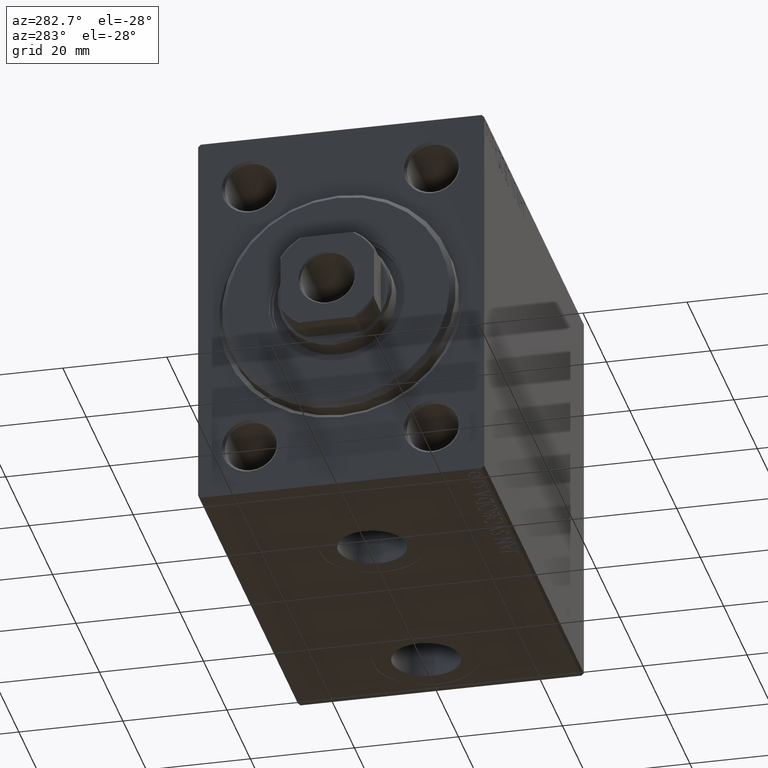
[diagram: clean part render]
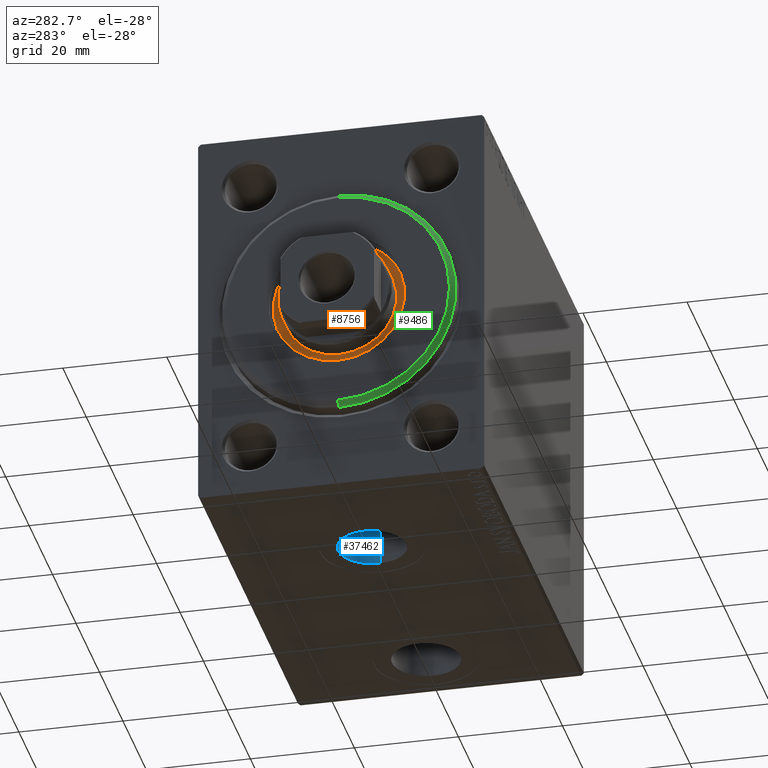
[diagram: same view with three faces highlighted in distinct colors, each labeled with its STEP entity id]
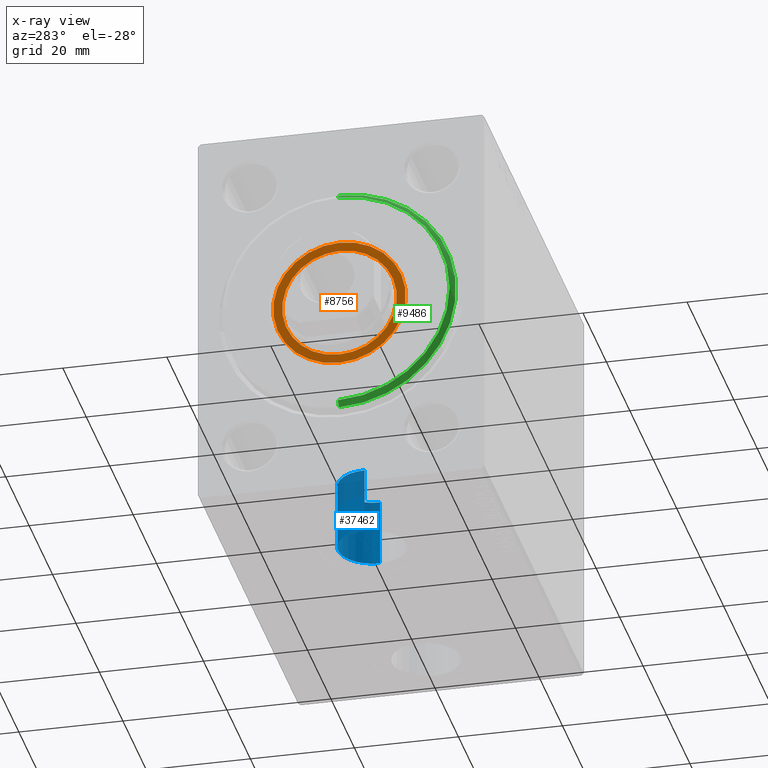
[diagram: x-ray of the same camera — body ghosted, the three highlighted faces saturated]
A machine part, auxiliary view with three faces highlighted in distinct colors.
The next image is the same camera in x-ray (body ghosted, the three faces saturated) — at least one of them is partly hidden behind the body in this view.
Their STEP definitions:

[orange] entity #8756 — the highlighted planar face has unit normal (-1, 0, 0).
#750 = FACE_BOUND ( 'NONE', #41080, .T. ) ;
#2014 = CARTESIAN_POINT ( 'NONE',  ( 1.499999999999999556, 0.000000000000000000, 0.000000000000000000 ) ) ;
#2686 = ORIENTED_EDGE ( 'NONE', *, *, #26908, .T. ) ;
#3203 = EDGE_CURVE ( 'NONE', #19255, #10459, #16832, .T. ) ;
#4662 = CARTESIAN_POINT ( 'NONE',  ( 1.500000000000000000, 0.000000000000000000, 12.75000000000000000 ) ) ;
#4664 = CARTESIAN_POINT ( 'NONE',  ( 1.500000000000000000, 0.000000000000000000, 0.000000000000000000 ) ) ;
#4954 = CARTESIAN_POINT ( 'NONE',  ( 1.499999999999999556, 0.000000000000000000, -11.00000000000000000 ) ) ;
#5972 = DIRECTION ( 'NONE',  ( 1.000000000000000000, 0.000000000000000000, 0.000000000000000000 ) ) ;
#8274 = DIRECTION ( 'NONE',  ( 1.000000000000000000, 0.000000000000000000, 0.000000000000000000 ) ) ;
#8417 = CIRCLE ( 'NONE', #20181, 12.75000000000000000 ) ;
#8756 = ADVANCED_FACE ( 'NONE', ( #750, #28860 ), #15027, .T. ) ;
#10459 = VERTEX_POINT ( 'NONE', #22974 ) ;
#12208 = DIRECTION ( 'NONE',  ( 0.000000000000000000, 0.000000000000000000, -1.000000000000000000 ) ) ;
#12518 = VERTEX_POINT ( 'NONE', #4954 ) ;
#12661 = CARTESIAN_POINT ( 'NONE',  ( 1.500000000000000000, 0.000000000000000000, 0.000000000000000000 ) ) ;
#13043 = CIRCLE ( 'NONE', #15292, 11.00000000000000000 ) ;
#13144 = AXIS2_PLACEMENT_3D ( 'NONE', #12661, #5972, #12208 ) ;
#14972 = ORIENTED_EDGE ( 'NONE', *, *, #16357, .F. ) ;
#15027 = PLANE ( 'NONE',  #27196 ) ;
#15246 = DIRECTION ( 'NONE',  ( 1.000000000000000000, 0.000000000000000000, 0.000000000000000000 ) ) ;
#15292 = AXIS2_PLACEMENT_3D ( 'NONE', #25029, #39076, #28930 ) ;
#15847 = DIRECTION ( 'NONE',  ( 0.000000000000000000, 0.000000000000000000, -1.000000000000000000 ) ) ;
#16357 = EDGE_CURVE ( 'NONE', #12518, #39374, #35501, .T. ) ;
#16832 = CIRCLE ( 'NONE', #13144, 12.75000000000000000 ) ;
#17268 = CARTESIAN_POINT ( 'NONE',  ( 1.499999999999999556, 1.347111479062088405E-15, 11.00000000000000000 ) ) ;
#18473 = DIRECTION ( 'NONE',  ( 0.000000000000000000, 0.000000000000000000, -1.000000000000000000 ) ) ;
#18570 = AXIS2_PLACEMENT_3D ( 'NONE', #2014, #8274, #15847 ) ;
#19244 = DIRECTION ( 'NONE',  ( 1.000000000000000000, 0.000000000000000000, 0.000000000000000000 ) ) ;
#19255 = VERTEX_POINT ( 'NONE', #4662 ) ;
#20181 = AXIS2_PLACEMENT_3D ( 'NONE', #33757, #19244, #44366 ) ;
#22974 = CARTESIAN_POINT ( 'NONE',  ( 1.500000000000000000, 1.561424668912874914E-15, -12.75000000000000000 ) ) ;
#25029 = CARTESIAN_POINT ( 'NONE',  ( 1.499999999999999556, 0.000000000000000000, 0.000000000000000000 ) ) ;
#26908 = EDGE_CURVE ( 'NONE', #10459, #19255, #8417, .T. ) ;
#27196 = AXIS2_PLACEMENT_3D ( 'NONE', #4664, #15246, #18473 ) ;
#27506 = ORIENTED_EDGE ( 'NONE', *, *, #32598, .F. ) ;
#28860 = FACE_OUTER_BOUND ( 'NONE', #35562, .T. ) ;
#28930 = DIRECTION ( 'NONE',  ( 0.000000000000000000, 0.000000000000000000, -1.000000000000000000 ) ) ;
#32598 = EDGE_CURVE ( 'NONE', #39374, #12518, #13043, .T. ) ;
#33757 = CARTESIAN_POINT ( 'NONE',  ( 1.500000000000000000, 0.000000000000000000, 0.000000000000000000 ) ) ;
#35501 = CIRCLE ( 'NONE', #18570, 11.00000000000000000 ) ;
#35562 = EDGE_LOOP ( 'NONE', ( #45522, #2686 ) ) ;
#39076 = DIRECTION ( 'NONE',  ( 1.000000000000000000, 0.000000000000000000, 0.000000000000000000 ) ) ;
#39374 = VERTEX_POINT ( 'NONE', #17268 ) ;
#41080 = EDGE_LOOP ( 'NONE', ( #14972, #27506 ) ) ;
#44366 = DIRECTION ( 'NONE',  ( 0.000000000000000000, 0.000000000000000000, -1.000000000000000000 ) ) ;
#45522 = ORIENTED_EDGE ( 'NONE', *, *, #3203, .T. ) ;

[blue] entity #37462 — the highlighted cylindrical surface (edge-blend (fillet) strip) has radius 6.58 mm, axis along (-0, -0, -1).
#2095 = CIRCLE ( 'NONE', #33742, 6.580000000000002736 ) ;
#2715 = CARTESIAN_POINT ( 'NONE',  ( 33.07999999999999829, -2.655956697058369311E-15, -24.49999999999999289 ) ) ;
#7217 = EDGE_CURVE ( 'NONE', #24890, #11296, #2095, .T. ) ;
#7603 = CARTESIAN_POINT ( 'NONE',  ( 26.50000000000000000, -3.461774290897328353E-15, -37.39999999999999858 ) ) ;
#10154 = ORIENTED_EDGE ( 'NONE', *, *, #27327, .T. ) ;
#10183 = VECTOR ( 'NONE', #44475, 1000.000000000000000 ) ;
#10954 = VECTOR ( 'NONE', #13127, 1000.000000000000000 ) ;
#11296 = VERTEX_POINT ( 'NONE', #2715 ) ;
#11562 = DIRECTION ( 'NONE',  ( -1.000000000000000000, 0.000000000000000000, 0.000000000000000000 ) ) ;
#12983 = DIRECTION ( 'NONE',  ( -1.000000000000000000, 0.000000000000000000, 0.000000000000000000 ) ) ;
#13127 = DIRECTION ( 'NONE',  ( -0.000000000000000000, -0.000000000000000000, -1.000000000000000000 ) ) ;
#14807 = CARTESIAN_POINT ( 'NONE',  ( 19.91999999999999815, -3.461774290897328353E-15, -37.39999999999999858 ) ) ;
#15496 = CARTESIAN_POINT ( 'NONE',  ( 33.07999999999999829, -2.655956697058369311E-15, -37.39999999999999858 ) ) ;
#19481 = AXIS2_PLACEMENT_3D ( 'NONE', #7603, #25352, #35711 ) ;
#20588 = CYLINDRICAL_SURFACE ( 'NONE', #29247, 6.580000000000002736 ) ;
#23276 = CARTESIAN_POINT ( 'NONE',  ( 33.07999999999999829, -2.655956697058369706E-15, -24.49999999999999289 ) ) ;
#23962 = LINE ( 'NONE', #23276, #10954 ) ;
#24890 = VERTEX_POINT ( 'NONE', #37442 ) ;
#25352 = DIRECTION ( 'NONE',  ( 0.000000000000000000, 0.000000000000000000, -1.000000000000000000 ) ) ;
#26847 = CIRCLE ( 'NONE', #19481, 6.580000000000002736 ) ;
#27327 = EDGE_CURVE ( 'NONE', #42926, #44128, #26847, .T. ) ;
#27513 = FACE_OUTER_BOUND ( 'NONE', #44645, .T. ) ;
#27971 = CARTESIAN_POINT ( 'NONE',  ( 26.50000000000000000, -3.461774290897328353E-15, -24.49999999999999289 ) ) ;
#29247 = AXIS2_PLACEMENT_3D ( 'NONE', #27971, #38093, #12983 ) ;
#30186 = LINE ( 'NONE', #40332, #10183 ) ;
#32252 = ORIENTED_EDGE ( 'NONE', *, *, #7217, .F. ) ;
#32994 = DIRECTION ( 'NONE',  ( 0.000000000000000000, 0.000000000000000000, -1.000000000000000000 ) ) ;
#33742 = AXIS2_PLACEMENT_3D ( 'NONE', #43137, #32994, #11562 ) ;
#35711 = DIRECTION ( 'NONE',  ( -1.000000000000000000, 0.000000000000000000, 0.000000000000000000 ) ) ;
#36788 = ORIENTED_EDGE ( 'NONE', *, *, #40935, .F. ) ;
#37442 = CARTESIAN_POINT ( 'NONE',  ( 19.91999999999999815, -3.461774290897328353E-15, -24.49999999999999289 ) ) ;
#37462 = ADVANCED_FACE ( 'NONE', ( #27513 ), #20588, .F. ) ;
#38093 = DIRECTION ( 'NONE',  ( -0.000000000000000000, -0.000000000000000000, -1.000000000000000000 ) ) ;
#39277 = EDGE_CURVE ( 'NONE', #24890, #42926, #30186, .T. ) ;
#40332 = CARTESIAN_POINT ( 'NONE',  ( 19.91999999999999815, -3.461774290897328353E-15, -24.49999999999999289 ) ) ;
#40935 = EDGE_CURVE ( 'NONE', #11296, #44128, #23962, .T. ) ;
#42926 = VERTEX_POINT ( 'NONE', #14807 ) ;
#43137 = CARTESIAN_POINT ( 'NONE',  ( 26.50000000000000000, -3.461774290897328353E-15, -24.49999999999999289 ) ) ;
#44128 = VERTEX_POINT ( 'NONE', #15496 ) ;
#44475 = DIRECTION ( 'NONE',  ( -0.000000000000000000, -0.000000000000000000, -1.000000000000000000 ) ) ;
#44645 = EDGE_LOOP ( 'NONE', ( #36788, #32252, #44947, #10154 ) ) ;
#44947 = ORIENTED_EDGE ( 'NONE', *, *, #39277, .T. ) ;

[green] entity #9486 — the highlighted conical surface has half-angle 45 deg.
#1395 = CARTESIAN_POINT ( 'NONE',  ( 3.000000000000000000, 2.694222958124177598E-15, -21.50000000000000355 ) ) ;
#1805 = VERTEX_POINT ( 'NONE', #1395 ) ;
#2614 = CARTESIAN_POINT ( 'NONE',  ( 3.000000000000000000, 0.000000000000000000, 21.50000000000000355 ) ) ;
#2756 = CIRCLE ( 'NONE', #43979, 21.50000000000000355 ) ;
#4336 = CARTESIAN_POINT ( 'NONE',  ( 3.000000000000000000, 0.000000000000000000, 0.000000000000000000 ) ) ;
#4903 = EDGE_LOOP ( 'NONE', ( #30896, #22058, #19042, #32935 ) ) ;
#5225 = VERTEX_POINT ( 'NONE', #37551 ) ;
#6910 = DIRECTION ( 'NONE',  ( 1.000000000000000000, -0.000000000000000000, 0.000000000000000000 ) ) ;
#7476 = AXIS2_PLACEMENT_3D ( 'NONE', #15613, #16057, #30113 ) ;
#8556 = EDGE_CURVE ( 'NONE', #1805, #36893, #12344, .T. ) ;
#9486 = ADVANCED_FACE ( 'NONE', ( #17928 ), #19106, .T. ) ;
#11052 = VECTOR ( 'NONE', #30491, 1000.000000000000000 ) ;
#12344 = LINE ( 'NONE', #41075, #22769 ) ;
#13487 = EDGE_CURVE ( 'NONE', #5225, #36893, #28826, .T. ) ;
#15613 = CARTESIAN_POINT ( 'NONE',  ( 1.999999999999999112, 0.000000000000000000, 0.000000000000000000 ) ) ;
#16057 = DIRECTION ( 'NONE',  ( -1.000000000000000000, 0.000000000000000000, 0.000000000000000000 ) ) ;
#16441 = LINE ( 'NONE', #2614, #11052 ) ;
#17928 = FACE_OUTER_BOUND ( 'NONE', #4903, .T. ) ;
#19042 = ORIENTED_EDGE ( 'NONE', *, *, #13487, .F. ) ;
#19106 = CONICAL_SURFACE ( 'NONE', #24280, 21.50000000000000355, 0.7853981633974466137 ) ;
#22058 = ORIENTED_EDGE ( 'NONE', *, *, #8556, .T. ) ;
#22735 = DIRECTION ( 'NONE',  ( -0.7071067811865487940, 8.659560562354919300E-17, -0.7071067811865463515 ) ) ;
#22769 = VECTOR ( 'NONE', #22735, 1000.000000000000000 ) ;
#24280 = AXIS2_PLACEMENT_3D ( 'NONE', #4336, #31986, #35894 ) ;
#26766 = CARTESIAN_POINT ( 'NONE',  ( 3.000000000000000000, 0.000000000000000000, 21.50000000000000355 ) ) ;
#27885 = CARTESIAN_POINT ( 'NONE',  ( 3.000000000000000000, 0.000000000000000000, 0.000000000000000000 ) ) ;
#28826 = CIRCLE ( 'NONE', #7476, 22.50000000000000355 ) ;
#28988 = VERTEX_POINT ( 'NONE', #26766 ) ;
#30113 = DIRECTION ( 'NONE',  ( 0.000000000000000000, 0.000000000000000000, -1.000000000000000000 ) ) ;
#30491 = DIRECTION ( 'NONE',  ( -0.7071067811865487940, 0.000000000000000000, 0.7071067811865463515 ) ) ;
#30896 = ORIENTED_EDGE ( 'NONE', *, *, #32892, .F. ) ;
#31986 = DIRECTION ( 'NONE',  ( -1.000000000000000000, 0.000000000000000000, 0.000000000000000000 ) ) ;
#32892 = EDGE_CURVE ( 'NONE', #1805, #28988, #2756, .T. ) ;
#32935 = ORIENTED_EDGE ( 'NONE', *, *, #43990, .F. ) ;
#35894 = DIRECTION ( 'NONE',  ( 0.000000000000000000, 0.000000000000000000, 1.000000000000000000 ) ) ;
#36893 = VERTEX_POINT ( 'NONE', #38782 ) ;
#37551 = CARTESIAN_POINT ( 'NONE',  ( 1.999999999999999112, 0.000000000000000000, 22.50000000000000355 ) ) ;
#38782 = CARTESIAN_POINT ( 'NONE',  ( 1.999999999999999112, 2.755455298081545172E-15, -22.50000000000000355 ) ) ;
#41075 = CARTESIAN_POINT ( 'NONE',  ( 3.000000000000000000, 2.632990618166810024E-15, -21.50000000000000355 ) ) ;
#43979 = AXIS2_PLACEMENT_3D ( 'NONE', #27885, #6910, #44941 ) ;
#43990 = EDGE_CURVE ( 'NONE', #28988, #5225, #16441, .T. ) ;
#44941 = DIRECTION ( 'NONE',  ( 0.000000000000000000, 0.000000000000000000, -1.000000000000000000 ) ) ;